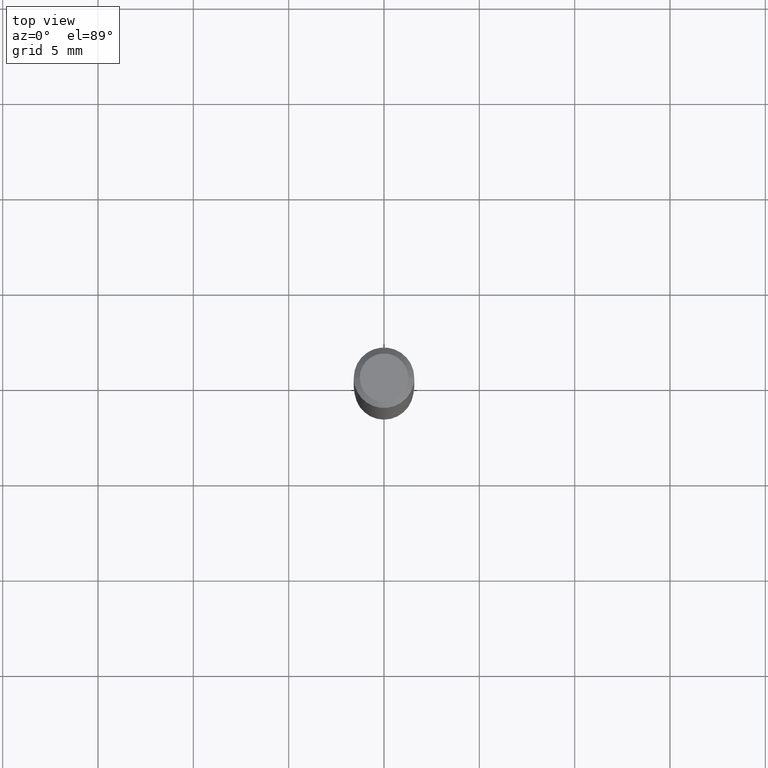
[diagram: clean part render]
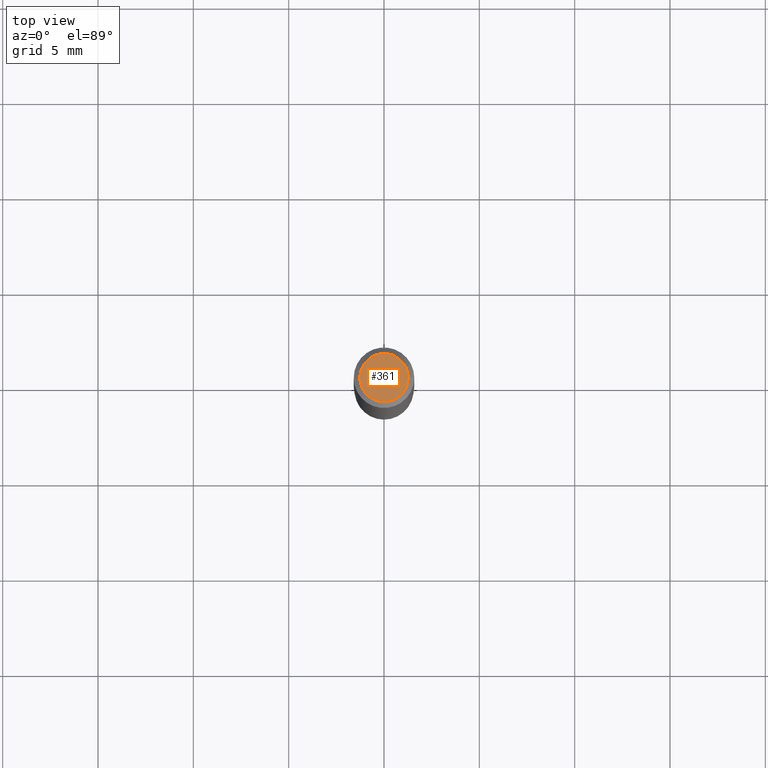
[diagram: same view with one face highlighted and labeled with its STEP entity id]
A machine part, top view. The second image highlights one B-rep face of the part: STEP entity #361.
In plain terms, the highlighted planar face has unit normal (0, -0, -1).
Its self-contained STEP definition (entity closure, byte-faithful):
#2 = CARTESIAN_POINT ( 'NONE',  ( 0.04999999999999999584, -4.077247707424184212E-16, -1.592040838888913461E-18 ) ) ;
#12 = CARTESIAN_POINT ( 'NONE',  ( 3.893286209682126177E-47, -5.558580879666067980E-33, -1.592040838891559689E-18 ) ) ;
#26 = ORIENTED_EDGE ( 'NONE', *, *, #92, .T. ) ;
#27 = VERTEX_POINT ( 'NONE', #2 ) ;
#46 = DIRECTION ( 'NONE',  ( -2.445468806185136597E-29, 3.491481338843145583E-15, 1.000000000000000000 ) ) ;
#59 = AXIS2_PLACEMENT_3D ( 'NONE', #104, #304, #75 ) ;
#63 = AXIS2_PLACEMENT_3D ( 'NONE', #270, #46, #415 ) ;
#64 = ORIENTED_EDGE ( 'NONE', *, *, #324, .T. ) ;
#70 = FACE_OUTER_BOUND ( 'NONE', #395, .T. ) ;
#75 = DIRECTION ( 'NONE',  ( -1.000000000000000000, 6.982962677686265922E-15, -4.876176775795935793E-29 ) ) ;
#92 = EDGE_CURVE ( 'NONE', #27, #222, #301, .T. ) ;
#104 = CARTESIAN_POINT ( 'NONE',  ( 1.946643104841063088E-47, -2.779290439833033990E-33, -7.960204194457798443E-19 ) ) ;
#222 = VERTEX_POINT ( 'NONE', #278 ) ;
#228 = PLANE ( 'NONE',  #59 ) ;
#270 = CARTESIAN_POINT ( 'NONE',  ( 3.893286209682126177E-47, -5.558580879666067980E-33, -1.592040838891559689E-18 ) ) ;
#278 = CARTESIAN_POINT ( 'NONE',  ( -0.04999999999999999584, 3.709698922520826725E-16, -1.592040838894077649E-18 ) ) ;
#301 = CIRCLE ( 'NONE', #63, 0.04999999999999999584 ) ;
#304 = DIRECTION ( 'NONE',  ( 2.438088387897960049E-29, -3.491481338843145188E-15, -1.000000000000000000 ) ) ;
#317 = DIRECTION ( 'NONE',  ( -2.445468806185136597E-29, 3.491481338843145583E-15, 1.000000000000000000 ) ) ;
#321 = CIRCLE ( 'NONE', #450, 0.04999999999999999584 ) ;
#324 = EDGE_CURVE ( 'NONE', #222, #27, #321, .T. ) ;
#361 = ADVANCED_FACE ( 'NONE', ( #70 ), #228, .F. ) ;
#395 = EDGE_LOOP ( 'NONE', ( #64, #26 ) ) ;
#415 = DIRECTION ( 'NONE',  ( 1.000000000000000000, -6.982962677686265922E-15, 4.875957971899673662E-29 ) ) ;
#450 = AXIS2_PLACEMENT_3D ( 'NONE', #12, #317, #467 ) ;
#467 = DIRECTION ( 'NONE',  ( 1.000000000000000000, -6.982962677686265922E-15, 4.875957971899673662E-29 ) ) ;